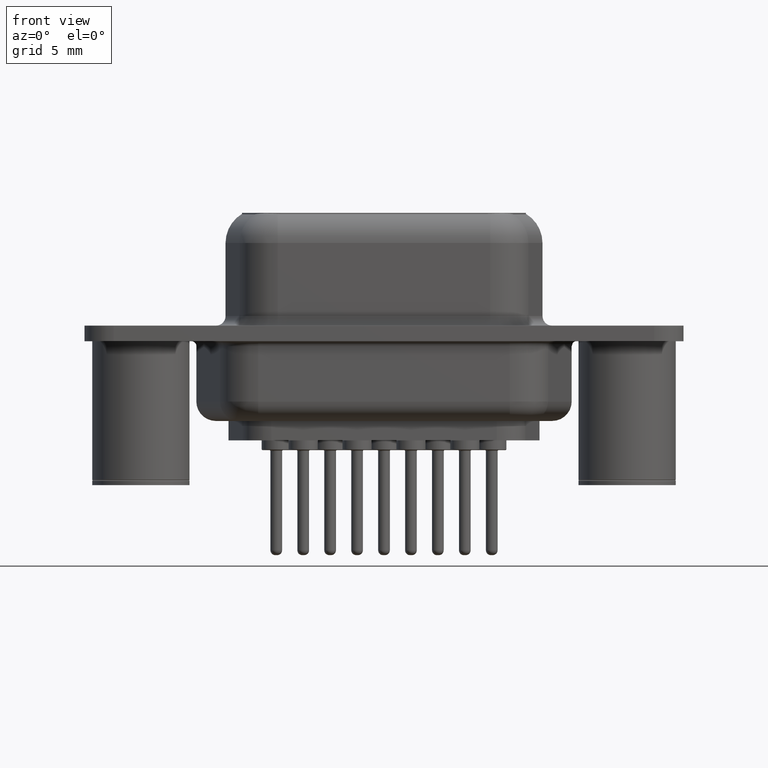
[diagram: clean part render]
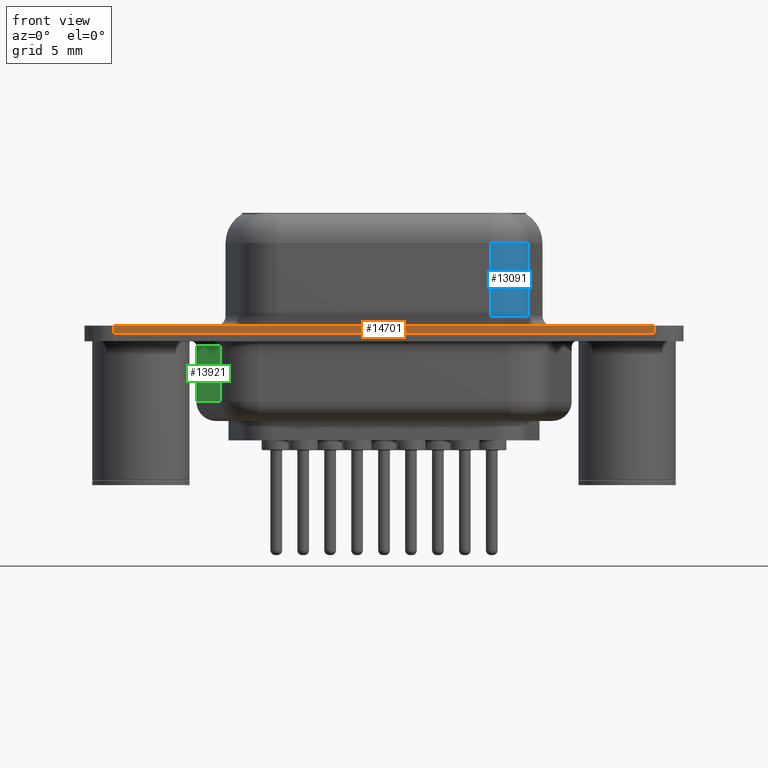
[diagram: same view with three faces highlighted in distinct colors, each labeled with its STEP entity id]
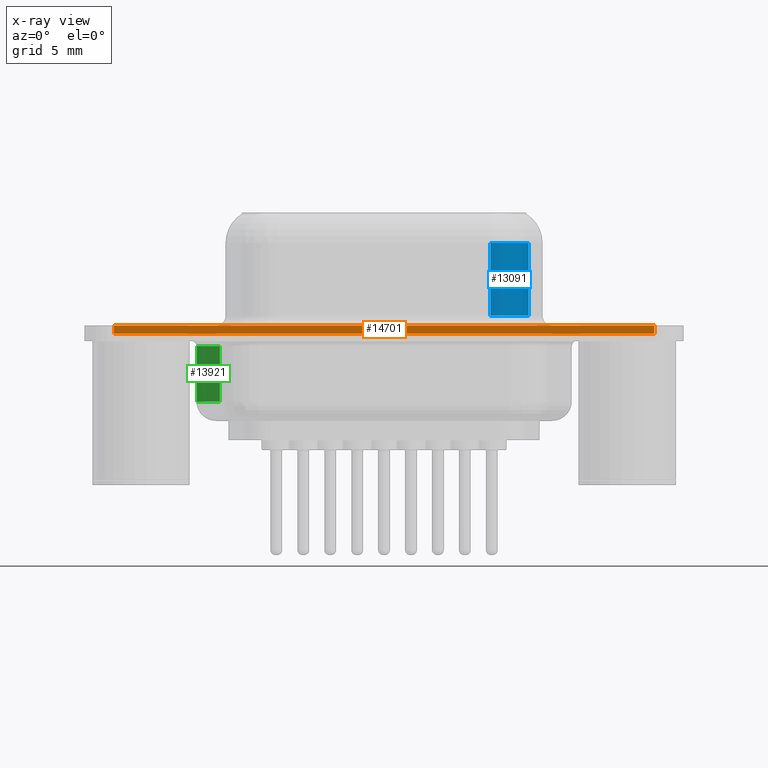
[diagram: x-ray of the same camera — body ghosted, the three highlighted faces saturated]
A machine part, front view with three faces highlighted in distinct colors.
The next image is the same camera in x-ray (body ghosted, the three faces saturated) — at least one of them is partly hidden behind the body in this view.
Their STEP definitions:

[orange] entity #14701 — the highlighted planar face has unit normal (-0, 1, 0).
#619 = CARTESIAN_POINT ( 'NONE',  ( 26.39999999999999503, -6.249999999999999112, 0.4000000000000000222 ) ) ;
#999 = ORIENTED_EDGE ( 'NONE', *, *, #7323, .T. ) ;
#1025 = LINE ( 'NONE', #3625, #3382 ) ;
#1204 = EDGE_CURVE ( 'NONE', #5783, #7648, #8962, .T. ) ;
#2040 = CARTESIAN_POINT ( 'NONE',  ( -1.400000000000001688, -6.250000000000001776, 0.4000000000000000222 ) ) ;
#2113 = ORIENTED_EDGE ( 'NONE', *, *, #3355, .T. ) ;
#2249 = DIRECTION ( 'NONE',  ( 1.000000000000000000, 9.360018755270542231E-17, -0.0000000000000000000 ) ) ;
#2255 = VECTOR ( 'NONE', #7953, 1000.000000000000000 ) ;
#2882 = LINE ( 'NONE', #6563, #2255 ) ;
#3331 = ORIENTED_EDGE ( 'NONE', *, *, #1204, .F. ) ;
#3355 = EDGE_CURVE ( 'NONE', #9420, #7648, #2882, .T. ) ;
#3382 = VECTOR ( 'NONE', #9775, 1000.000000000000000 ) ;
#3606 = CARTESIAN_POINT ( 'NONE',  ( 26.39999999999999503, -6.250000000000000000, 0.0000000000000000000 ) ) ;
#3625 = CARTESIAN_POINT ( 'NONE',  ( -1.400000000000001688, -6.250000000000001776, 0.4000000000000000222 ) ) ;
#4588 = VERTEX_POINT ( 'NONE', #2040 ) ;
#5783 = VERTEX_POINT ( 'NONE', #11085 ) ;
#5918 = EDGE_CURVE ( 'NONE', #4588, #5783, #9861, .T. ) ;
#6563 = CARTESIAN_POINT ( 'NONE',  ( 26.39999999999999503, -6.249999999999999112, 0.0000000000000000000 ) ) ;
#7323 = EDGE_CURVE ( 'NONE', #4588, #9420, #1025, .T. ) ;
#7648 = VERTEX_POINT ( 'NONE', #3606 ) ;
#7707 = ORIENTED_EDGE ( 'NONE', *, *, #5918, .F. ) ;
#7817 = CARTESIAN_POINT ( 'NONE',  ( 26.39999999999999503, -6.250000000000000000, 0.4000000000000000222 ) ) ;
#7953 = DIRECTION ( 'NONE',  ( 1.000000000000000000, 9.360018755270542231E-17, -0.0000000000000000000 ) ) ;
#8962 = LINE ( 'NONE', #7817, #12292 ) ;
#9246 = CARTESIAN_POINT ( 'NONE',  ( -1.400000000000001688, -6.250000000000001776, 0.0000000000000000000 ) ) ;
#9420 = VERTEX_POINT ( 'NONE', #9246 ) ;
#9613 = CARTESIAN_POINT ( 'NONE',  ( 26.39999999999999503, -6.249999999999999112, 0.4000000000000000222 ) ) ;
#9775 = DIRECTION ( 'NONE',  ( -0.0000000000000000000, -0.0000000000000000000, -1.000000000000000000 ) ) ;
#9861 = LINE ( 'NONE', #9613, #12557 ) ;
#10690 = PLANE ( 'NONE',  #11932 ) ;
#10843 = DIRECTION ( 'NONE',  ( -1.000000000000000000, -9.360018755270542231E-17, 0.0000000000000000000 ) ) ;
#11085 = CARTESIAN_POINT ( 'NONE',  ( 26.39999999999999503, -6.250000000000000000, 0.4000000000000000222 ) ) ;
#11932 = AXIS2_PLACEMENT_3D ( 'NONE', #619, #13120, #10843 ) ;
#12292 = VECTOR ( 'NONE', #12812, 1000.000000000000000 ) ;
#12557 = VECTOR ( 'NONE', #2249, 1000.000000000000000 ) ;
#12812 = DIRECTION ( 'NONE',  ( -0.0000000000000000000, -0.0000000000000000000, -1.000000000000000000 ) ) ;
#13120 = DIRECTION ( 'NONE',  ( -9.360018755270542231E-17, 1.000000000000000000, 0.0000000000000000000 ) ) ;
#13555 = EDGE_LOOP ( 'NONE', ( #2113, #3331, #7707, #999 ) ) ;
#14701 = ADVANCED_FACE ( 'NONE', ( #15550 ), #10690, .F. ) ;
#15550 = FACE_OUTER_BOUND ( 'NONE', #13555, .T. ) ;

[blue] entity #13091 — the highlighted cylindrical surface (partial cylindrical patch) has radius 2 mm, axis along (-0, -0, -1).
#503 = DIRECTION ( 'NONE',  ( -0.0000000000000000000, -0.0000000000000000000, -1.000000000000000000 ) ) ;
#577 = EDGE_CURVE ( 'NONE', #15615, #16069, #8108, .T. ) ;
#800 = CARTESIAN_POINT ( 'NONE',  ( 17.96232477523702542, -3.950000000000001066, 4.650000000000000355 ) ) ;
#1059 = CARTESIAN_POINT ( 'NONE',  ( 17.96232477523702542, -1.950000000000002176, 0.8999999999999998002 ) ) ;
#1079 = AXIS2_PLACEMENT_3D ( 'NONE', #1059, #9896, #11047 ) ;
#1292 = EDGE_CURVE ( 'NONE', #10386, #15615, #7399, .T. ) ;
#1637 = CARTESIAN_POINT ( 'NONE',  ( 17.96232477523702542, -1.950000000000002176, 6.400000000000000355 ) ) ;
#2667 = ORIENTED_EDGE ( 'NONE', *, *, #577, .T. ) ;
#2887 = VECTOR ( 'NONE', #4873, 1000.000000000000000 ) ;
#3529 = DIRECTION ( 'NONE',  ( -0.0000000000000000000, -0.0000000000000000000, -1.000000000000000000 ) ) ;
#4783 = CARTESIAN_POINT ( 'NONE',  ( 17.96232477523702542, -3.950000000000001066, 6.400000000000000355 ) ) ;
#4873 = DIRECTION ( 'NONE',  ( -0.0000000000000000000, -0.0000000000000000000, -1.000000000000000000 ) ) ;
#5088 = CARTESIAN_POINT ( 'NONE',  ( 19.93194028126144346, -2.297296355333849238, 0.8999999999999998002 ) ) ;
#5404 = CYLINDRICAL_SURFACE ( 'NONE', #9272, 1.999999999999998224 ) ;
#5848 = CIRCLE ( 'NONE', #6100, 1.999999999999998224 ) ;
#6100 = AXIS2_PLACEMENT_3D ( 'NONE', #11007, #13785, #8786 ) ;
#7235 = VERTEX_POINT ( 'NONE', #10030 ) ;
#7399 = LINE ( 'NONE', #4783, #2887 ) ;
#7472 = ORIENTED_EDGE ( 'NONE', *, *, #12452, .T. ) ;
#7789 = EDGE_CURVE ( 'NONE', #7235, #16069, #9753, .T. ) ;
#8108 = CIRCLE ( 'NONE', #1079, 1.999999999999998224 ) ;
#8786 = DIRECTION ( 'NONE',  ( -1.000000000000000000, 0.0000000000000000000, 0.0000000000000000000 ) ) ;
#8843 = DIRECTION ( 'NONE',  ( -1.000000000000000000, 0.0000000000000000000, 0.0000000000000000000 ) ) ;
#8942 = CARTESIAN_POINT ( 'NONE',  ( 17.96232477523702542, -3.950000000000001066, 0.8999999999999998002 ) ) ;
#9272 = AXIS2_PLACEMENT_3D ( 'NONE', #1637, #503, #8843 ) ;
#9753 = LINE ( 'NONE', #13599, #9961 ) ;
#9896 = DIRECTION ( 'NONE',  ( 0.0000000000000000000, 0.0000000000000000000, 1.000000000000000000 ) ) ;
#9961 = VECTOR ( 'NONE', #3529, 1000.000000000000000 ) ;
#10030 = CARTESIAN_POINT ( 'NONE',  ( 19.93194028126144346, -2.297296355333849238, 4.650000000000000355 ) ) ;
#10386 = VERTEX_POINT ( 'NONE', #800 ) ;
#11007 = CARTESIAN_POINT ( 'NONE',  ( 17.96232477523702542, -1.950000000000002176, 4.650000000000000355 ) ) ;
#11047 = DIRECTION ( 'NONE',  ( 1.000000000000000000, 0.0000000000000000000, 0.0000000000000000000 ) ) ;
#11550 = FACE_OUTER_BOUND ( 'NONE', #12992, .T. ) ;
#12452 = EDGE_CURVE ( 'NONE', #7235, #10386, #5848, .T. ) ;
#12992 = EDGE_LOOP ( 'NONE', ( #13410, #7472, #13242, #2667 ) ) ;
#13091 = ADVANCED_FACE ( 'NONE', ( #11550 ), #5404, .T. ) ;
#13242 = ORIENTED_EDGE ( 'NONE', *, *, #1292, .T. ) ;
#13410 = ORIENTED_EDGE ( 'NONE', *, *, #7789, .F. ) ;
#13599 = CARTESIAN_POINT ( 'NONE',  ( 19.93194028126144346, -2.297296355333849238, 6.400000000000000355 ) ) ;
#13785 = DIRECTION ( 'NONE',  ( -0.0000000000000000000, -0.0000000000000000000, -1.000000000000000000 ) ) ;
#15615 = VERTEX_POINT ( 'NONE', #8942 ) ;
#16069 = VERTEX_POINT ( 'NONE', #5088 ) ;

[green] entity #13921 — the highlighted planar face has unit normal (0.9848, 0.1736, 0).
#780 = CARTESIAN_POINT ( 'NONE',  ( 2.880384493975589155, 3.002703644666158578, -3.499999999999999556 ) ) ;
#836 = DIRECTION ( 'NONE',  ( 0.9848077530122092416, 0.1736481776669239752, 0.0000000000000000000 ) ) ;
#896 = VECTOR ( 'NONE', #13285, 999.9999999999998863 ) ;
#1028 = VERTEX_POINT ( 'NONE', #7161 ) ;
#1163 = CARTESIAN_POINT ( 'NONE',  ( 2.880384493975589155, 3.002703644666158578, -4.500000000000000000 ) ) ;
#2222 = DIRECTION ( 'NONE',  ( -0.0000000000000000000, -0.0000000000000000000, 1.000000000000000000 ) ) ;
#2435 = VECTOR ( 'NONE', #10321, 1000.000000000000000 ) ;
#3236 = ORIENTED_EDGE ( 'NONE', *, *, #11562, .F. ) ;
#3588 = ORIENTED_EDGE ( 'NONE', *, *, #6400, .T. ) ;
#4350 = VERTEX_POINT ( 'NONE', #6526 ) ;
#5512 = CARTESIAN_POINT ( 'NONE',  ( 4.061775264722261802, -3.697296355333849593, -3.499999999999999556 ) ) ;
#5900 = DIRECTION ( 'NONE',  ( -0.1736481776669240029, 0.9848077530122092416, 0.0000000000000000000 ) ) ;
#6400 = EDGE_CURVE ( 'NONE', #9087, #1028, #14817, .T. ) ;
#6526 = CARTESIAN_POINT ( 'NONE',  ( 2.880384493975589155, 3.002703644666158578, -3.499999999999999556 ) ) ;
#7023 = PLANE ( 'NONE',  #14508 ) ;
#7161 = CARTESIAN_POINT ( 'NONE',  ( 2.880384493975589155, 3.002703644666158578, -0.6500000000000000222 ) ) ;
#7411 = EDGE_LOOP ( 'NONE', ( #3236, #14494, #11394, #3588 ) ) ;
#7776 = CARTESIAN_POINT ( 'NONE',  ( 4.061775264722261802, -3.697296355333849593, -4.500000000000000000 ) ) ;
#8917 = LINE ( 'NONE', #7776, #2435 ) ;
#9087 = VERTEX_POINT ( 'NONE', #12980 ) ;
#9495 = FACE_OUTER_BOUND ( 'NONE', #7411, .T. ) ;
#10321 = DIRECTION ( 'NONE',  ( -0.0000000000000000000, -0.0000000000000000000, 1.000000000000000000 ) ) ;
#10798 = VERTEX_POINT ( 'NONE', #5512 ) ;
#10910 = EDGE_CURVE ( 'NONE', #4350, #10798, #14340, .T. ) ;
#11069 = CARTESIAN_POINT ( 'NONE',  ( 2.880384493975589155, 3.002703644666158578, -0.6500000000000000222 ) ) ;
#11394 = ORIENTED_EDGE ( 'NONE', *, *, #11735, .T. ) ;
#11562 = EDGE_CURVE ( 'NONE', #4350, #1028, #12372, .T. ) ;
#11735 = EDGE_CURVE ( 'NONE', #10798, #9087, #8917, .T. ) ;
#12372 = LINE ( 'NONE', #1163, #13972 ) ;
#12528 = VECTOR ( 'NONE', #5900, 999.9999999999998863 ) ;
#12980 = CARTESIAN_POINT ( 'NONE',  ( 4.061775264722261802, -3.697296355333849593, -0.6500000000000000222 ) ) ;
#13017 = CARTESIAN_POINT ( 'NONE',  ( 2.880384493975589155, 3.002703644666158578, -4.500000000000000000 ) ) ;
#13176 = DIRECTION ( 'NONE',  ( -0.1736481776669239474, 0.9848077530122091305, 0.0000000000000000000 ) ) ;
#13285 = DIRECTION ( 'NONE',  ( 0.1736481776669240029, -0.9848077530122092416, -0.0000000000000000000 ) ) ;
#13921 = ADVANCED_FACE ( 'NONE', ( #9495 ), #7023, .F. ) ;
#13972 = VECTOR ( 'NONE', #2222, 1000.000000000000000 ) ;
#14340 = LINE ( 'NONE', #780, #896 ) ;
#14494 = ORIENTED_EDGE ( 'NONE', *, *, #10910, .T. ) ;
#14508 = AXIS2_PLACEMENT_3D ( 'NONE', #13017, #836, #13176 ) ;
#14817 = LINE ( 'NONE', #11069, #12528 ) ;